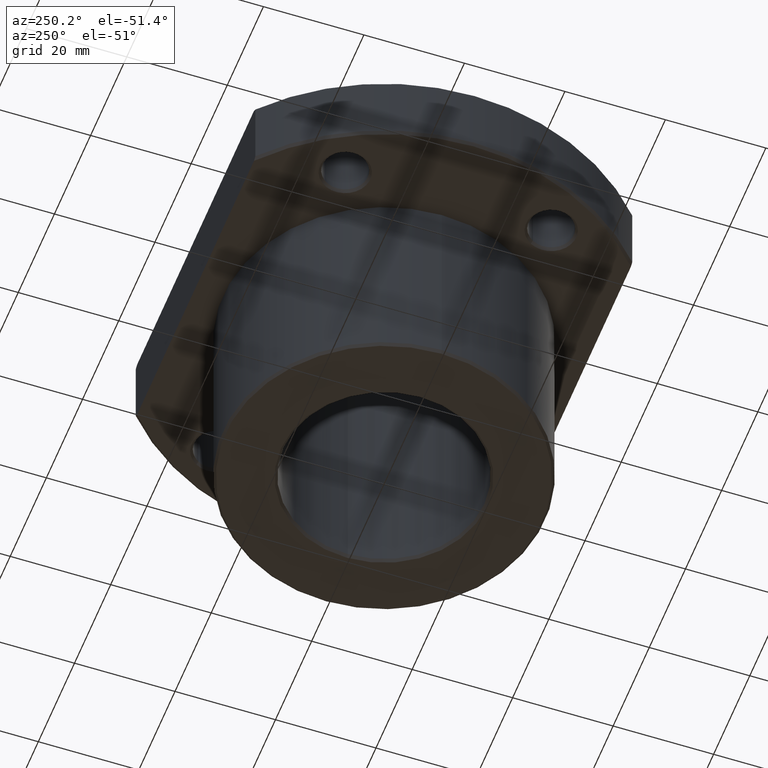
[diagram: clean part render]
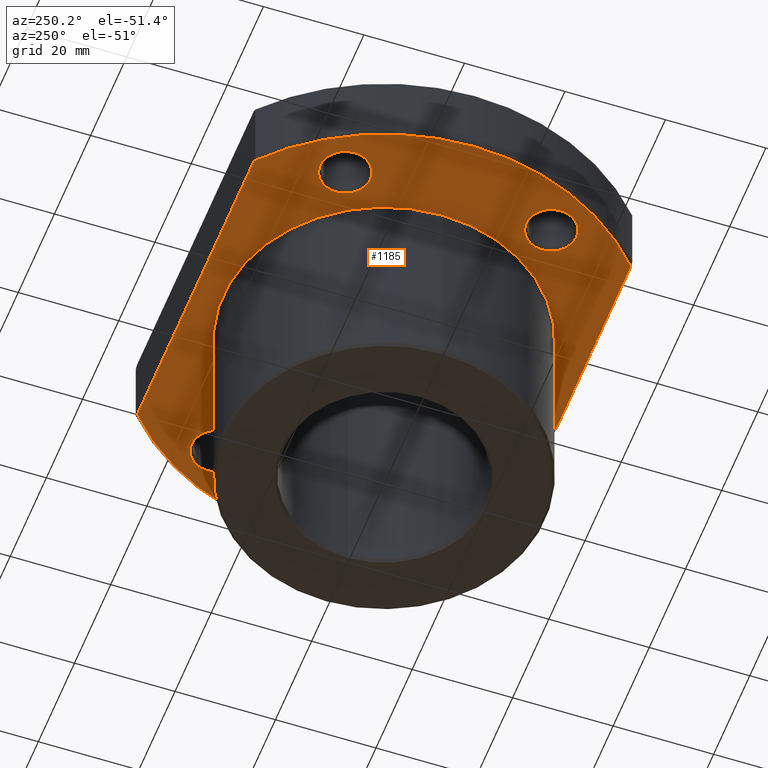
[diagram: same view with one face highlighted and labeled with its STEP entity id]
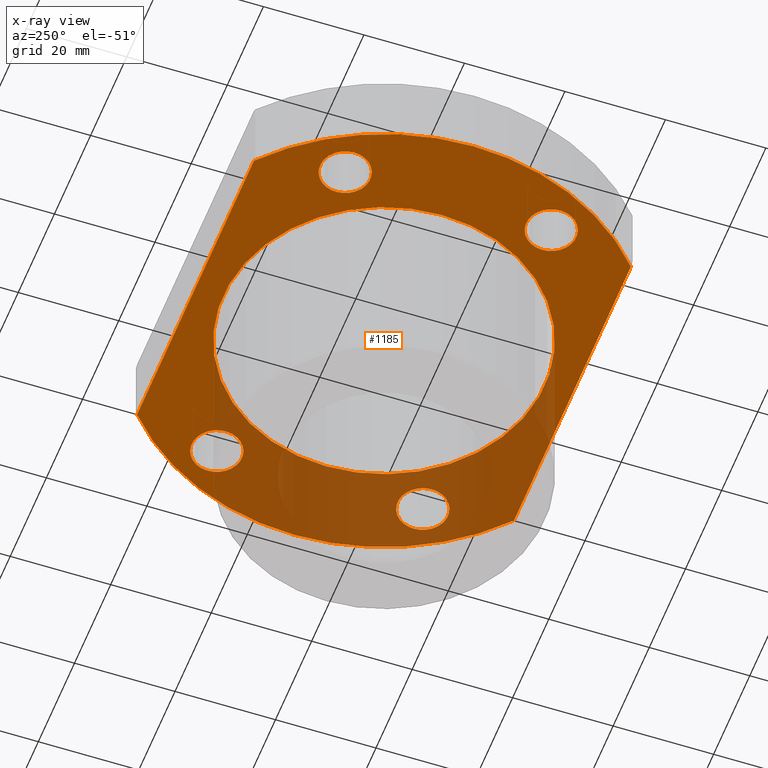
[diagram: x-ray of the same camera — body ghosted, the highlighted face saturated]
A machine part, auxiliary view. The second image highlights one B-rep face of the part: STEP entity #1185.
The next image is the same camera in x-ray: the body ghosted, the highlighted face saturated — about 36% of this face is hidden behind the body in this view.
In plain terms, the highlighted planar face has unit normal (0, 0, 1).
Its self-contained STEP definition (entity closure, byte-faithful):
#48=AXIS2_PLACEMENT_3D('Circle Axis2P3D',#46,#47,$) ;
#74=AXIS2_PLACEMENT_3D('Circle Axis2P3D',#72,#73,$) ;
#363=AXIS2_PLACEMENT_3D('Circle Axis2P3D',#361,#362,$) ;
#385=AXIS2_PLACEMENT_3D('Circle Axis2P3D',#383,#384,$) ;
#516=AXIS2_PLACEMENT_3D('Circle Axis2P3D',#514,#515,$) ;
#538=AXIS2_PLACEMENT_3D('Circle Axis2P3D',#536,#537,$) ;
#765=AXIS2_PLACEMENT_3D('Circle Axis2P3D',#763,#764,$) ;
#782=AXIS2_PLACEMENT_3D('Circle Axis2P3D',#780,#781,$) ;
#822=AXIS2_PLACEMENT_3D('Circle Axis2P3D',#820,#821,$) ;
#844=AXIS2_PLACEMENT_3D('Circle Axis2P3D',#842,#843,$) ;
#1041=AXIS2_PLACEMENT_3D('Circle Axis2P3D',#1039,#1040,$) ;
#1138=AXIS2_PLACEMENT_3D('Plane Axis2P3D',#1135,#1136,#1137) ;
#1142=AXIS2_PLACEMENT_3D('Circle Axis2P3D',#1140,#1141,$) ;
#43=CARTESIAN_POINT('Vertex',(-32.,3.91874033223E-015,41.)) ;
#46=CARTESIAN_POINT('Axis2P3D Location',(0.,0.,41.)) ;
#50=CARTESIAN_POINT('Vertex',(32.,0.,41.)) ;
#72=CARTESIAN_POINT('Axis2P3D Location',(0.,0.,41.)) ;
#342=CARTESIAN_POINT('Vertex',(-39.8371685748,-22.9999999988,41.)) ;
#358=CARTESIAN_POINT('Vertex',(-31.1769145362,-18.,41.)) ;
#361=CARTESIAN_POINT('Axis2P3D Location',(-35.5070415552,-20.5,41.)) ;
#383=CARTESIAN_POINT('Axis2P3D Location',(-35.5070415552,-20.5,41.)) ;
#495=CARTESIAN_POINT('Vertex',(-39.8371685734,23.0000000012,41.)) ;
#511=CARTESIAN_POINT('Vertex',(-31.1769145362,18.,41.)) ;
#514=CARTESIAN_POINT('Axis2P3D Location',(-35.5070415552,20.5,41.)) ;
#536=CARTESIAN_POINT('Axis2P3D Location',(-35.5070415552,20.5,41.)) ;
#753=CARTESIAN_POINT('Vertex',(39.8371685734,-23.0000000012,41.)) ;
#760=CARTESIAN_POINT('Vertex',(31.1769145362,-18.,41.)) ;
#763=CARTESIAN_POINT('Axis2P3D Location',(35.5070415552,-20.5,41.)) ;
#780=CARTESIAN_POINT('Axis2P3D Location',(35.5070415552,-20.5,41.)) ;
#801=CARTESIAN_POINT('Vertex',(39.8371685748,22.9999999988,41.)) ;
#817=CARTESIAN_POINT('Vertex',(31.1769145362,18.,41.)) ;
#820=CARTESIAN_POINT('Axis2P3D Location',(35.5070415552,20.5,41.)) ;
#842=CARTESIAN_POINT('Axis2P3D Location',(35.5070415552,20.5,41.)) ;
#1028=CARTESIAN_POINT('Vertex',(32.3109888428,37.5,41.)) ;
#1036=CARTESIAN_POINT('Vertex',(32.3109888428,-37.5,41.)) ;
#1039=CARTESIAN_POINT('Axis2P3D Location',(7.1054273576E-015,6.2902372647E-015,41.)) ;
#1135=CARTESIAN_POINT('Axis2P3D Location',(0.,0.,41.)) ;
#1140=CARTESIAN_POINT('Axis2P3D Location',(-7.1054273576E-015,-2.38421233569E-016,41.)) ;
#1144=CARTESIAN_POINT('Vertex',(-32.3109888428,37.5,41.)) ;
#1146=CARTESIAN_POINT('Vertex',(-32.3109888428,-37.5,41.)) ;
#1149=CARTESIAN_POINT('Line Origine',(-7.1054273576E-015,37.5,41.)) ;
#1154=CARTESIAN_POINT('Line Origine',(-7.1054273576E-015,-37.5,41.)) ;
#47=DIRECTION('Axis2P3D Direction',(0.,0.,1.)) ;
#73=DIRECTION('Axis2P3D Direction',(0.,0.,1.)) ;
#362=DIRECTION('Axis2P3D Direction',(-8.50988942379E-015,1.88863059393E-014,1.)) ;
#384=DIRECTION('Axis2P3D Direction',(4.85309713761E-014,-8.40581081641E-014,1.)) ;
#515=DIRECTION('Axis2P3D Direction',(1.11796591005E-014,1.55327396983E-014,1.)) ;
#537=DIRECTION('Axis2P3D Direction',(-4.66270778538E-014,-8.07604678512E-014,1.)) ;
#764=DIRECTION('Axis2P3D Direction',(-7.81075793248E-015,-1.08520723859E-014,1.)) ;
#781=DIRECTION('Axis2P3D Direction',(4.66270778538E-014,8.07604678512E-014,1.)) ;
#821=DIRECTION('Axis2P3D Direction',(1.66765337747E-015,-7.66082849339E-015,1.)) ;
#843=DIRECTION('Axis2P3D Direction',(-4.85309713761E-014,8.40581081641E-014,1.)) ;
#1040=DIRECTION('Axis2P3D Direction',(1.61637663644E-014,-1.45725614388E-014,1.)) ;
#1136=DIRECTION('Axis2P3D Direction',(0.,0.,1.)) ;
#1137=DIRECTION('Axis2P3D XDirection',(1.,0.,0.)) ;
#1141=DIRECTION('Axis2P3D Direction',(0.,0.,1.)) ;
#1150=DIRECTION('Vector Direction',(1.,0.,0.)) ;
#1155=DIRECTION('Vector Direction',(1.,0.,0.)) ;
#1151=VECTOR('Line Direction',#1150,1.) ;
#1156=VECTOR('Line Direction',#1155,1.) ;
#1160=ORIENTED_EDGE('',*,*,#1148,.F.) ;
#1161=ORIENTED_EDGE('',*,*,#1153,.F.) ;
#1162=ORIENTED_EDGE('',*,*,#1043,.F.) ;
#1163=ORIENTED_EDGE('',*,*,#1158,.F.) ;
#1166=ORIENTED_EDGE('',*,*,#824,.T.) ;
#1167=ORIENTED_EDGE('',*,*,#846,.T.) ;
#1170=ORIENTED_EDGE('',*,*,#767,.T.) ;
#1171=ORIENTED_EDGE('',*,*,#784,.T.) ;
#1174=ORIENTED_EDGE('',*,*,#518,.T.) ;
#1175=ORIENTED_EDGE('',*,*,#540,.T.) ;
#1178=ORIENTED_EDGE('',*,*,#365,.T.) ;
#1179=ORIENTED_EDGE('',*,*,#387,.T.) ;
#1182=ORIENTED_EDGE('',*,*,#76,.T.) ;
#1183=ORIENTED_EDGE('',*,*,#52,.T.) ;
#1168=FACE_BOUND('',#1165,.T.) ;
#1172=FACE_BOUND('',#1169,.T.) ;
#1176=FACE_BOUND('',#1173,.T.) ;
#1180=FACE_BOUND('',#1177,.T.) ;
#1184=FACE_BOUND('',#1181,.T.) ;
#1185=ADVANCED_FACE('',(#1164,#1168,#1172,#1176,#1180,#1184),#1139,.F.) ;
#49=CIRCLE('generated circle',#48,32.) ;
#75=CIRCLE('generated circle',#74,32.) ;
#364=CIRCLE('generated circle',#363,5.) ;
#386=CIRCLE('generated circle',#385,5.) ;
#517=CIRCLE('generated circle',#516,5.) ;
#539=CIRCLE('generated circle',#538,5.) ;
#766=CIRCLE('generated circle',#765,5.) ;
#783=CIRCLE('generated circle',#782,5.) ;
#823=CIRCLE('generated circle',#822,5.) ;
#845=CIRCLE('generated circle',#844,5.) ;
#1042=CIRCLE('generated circle',#1041,49.5) ;
#1143=CIRCLE('generated circle',#1142,49.5) ;
#52=EDGE_CURVE('',#51,#44,#49,.T.) ;
#76=EDGE_CURVE('',#44,#51,#75,.T.) ;
#365=EDGE_CURVE('',#343,#359,#364,.T.) ;
#387=EDGE_CURVE('',#359,#343,#386,.T.) ;
#518=EDGE_CURVE('',#496,#512,#517,.T.) ;
#540=EDGE_CURVE('',#512,#496,#539,.T.) ;
#767=EDGE_CURVE('',#754,#761,#766,.T.) ;
#784=EDGE_CURVE('',#761,#754,#783,.T.) ;
#824=EDGE_CURVE('',#802,#818,#823,.T.) ;
#846=EDGE_CURVE('',#818,#802,#845,.T.) ;
#1043=EDGE_CURVE('',#1037,#1029,#1042,.T.) ;
#1148=EDGE_CURVE('',#1145,#1147,#1143,.T.) ;
#1153=EDGE_CURVE('',#1029,#1145,#1152,.F.) ;
#1158=EDGE_CURVE('',#1147,#1037,#1157,.T.) ;
#1159=EDGE_LOOP('',(#1160,#1161,#1162,#1163)) ;
#1165=EDGE_LOOP('',(#1166,#1167)) ;
#1169=EDGE_LOOP('',(#1170,#1171)) ;
#1173=EDGE_LOOP('',(#1174,#1175)) ;
#1177=EDGE_LOOP('',(#1178,#1179)) ;
#1181=EDGE_LOOP('',(#1182,#1183)) ;
#1164=FACE_OUTER_BOUND('',#1159,.T.) ;
#1152=LINE('Line',#1149,#1151) ;
#1157=LINE('Line',#1154,#1156) ;
#1139=PLANE('Plane',#1138) ;
#44=VERTEX_POINT('',#43) ;
#51=VERTEX_POINT('',#50) ;
#343=VERTEX_POINT('',#342) ;
#359=VERTEX_POINT('',#358) ;
#496=VERTEX_POINT('',#495) ;
#512=VERTEX_POINT('',#511) ;
#754=VERTEX_POINT('',#753) ;
#761=VERTEX_POINT('',#760) ;
#802=VERTEX_POINT('',#801) ;
#818=VERTEX_POINT('',#817) ;
#1029=VERTEX_POINT('',#1028) ;
#1037=VERTEX_POINT('',#1036) ;
#1145=VERTEX_POINT('',#1144) ;
#1147=VERTEX_POINT('',#1146) ;